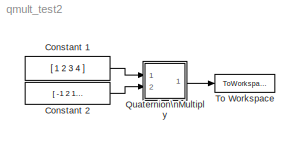
MODEL qmult_test2
KIND model
BLOCK [Constant] Constant 1
  Value = [ 1 2 3 4 ]
BLOCK [Constant] Constant 2
  Value = [  -1  2  1  -3 ]
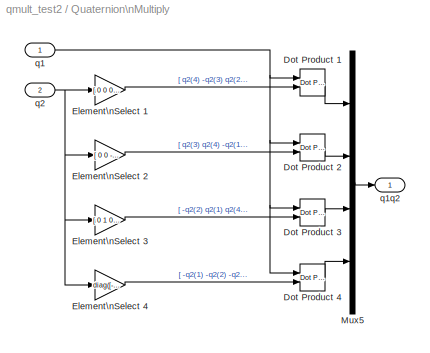
BLOCK [SubSystem] Quaternion\nMultiply
  FunctionWithSeparateData = off
  MaskDescription = q3 = (q1)(q2)
  MaskIconFrame = on
  MaskIconOpaque = on
  MaskIconRotate = none
  MaskIconUnits = pixels
  MaskType = Quaternion Multiply
  MinAlgLoopOccurrences = off
  Ports = [2, 1]
  RTWSystemCode = Auto
BLOCK [Reference] Quaternion\nMultiply/Dot Product 1  REF=simulink/Math\nOperations/Dot Product
  DoSatur = off
  InputSameDT = on
  LockScale = off
  OutDataType = sfix(16)
  OutDataTypeStr = Inherit: Inherit via internal rule
  OutScaling = 2^-10
  OutputDataTypeScalingMode = Inherit via internal rule
  Ports = [2, 1]
  RndMeth = Floor
  SourceBlock = simulink/Math\nOperations/Dot Product
  SourceType = Dot Product
BLOCK [Reference] Quaternion\nMultiply/Dot Product 2  REF=simulink/Math\nOperations/Dot Product
  DoSatur = off
  InputSameDT = on
  LockScale = off
  OutDataType = sfix(16)
  OutDataTypeStr = Inherit: Inherit via internal rule
  OutScaling = 2^-10
  OutputDataTypeScalingMode = Inherit via internal rule
  Ports = [2, 1]
  RndMeth = Floor
  SourceBlock = simulink/Math\nOperations/Dot Product
  SourceType = Dot Product
BLOCK [Reference] Quaternion\nMultiply/Dot Product 3  REF=simulink/Math\nOperations/Dot Product
  DoSatur = off
  InputSameDT = on
  LockScale = off
  OutDataType = sfix(16)
  OutDataTypeStr = Inherit: Inherit via internal rule
  OutScaling = 2^-10
  OutputDataTypeScalingMode = Inherit via internal rule
  Ports = [2, 1]
  RndMeth = Floor
  SourceBlock = simulink/Math\nOperations/Dot Product
  SourceType = Dot Product
BLOCK [Reference] Quaternion\nMultiply/Dot Product 4  REF=simulink/Math\nOperations/Dot Product
  DoSatur = off
  InputSameDT = on
  LockScale = off
  OutDataType = sfix(16)
  OutDataTypeStr = Inherit: Inherit via internal rule
  OutScaling = 2^-10
  OutputDataTypeScalingMode = Inherit via internal rule
  Ports = [2, 1]
  RndMeth = Floor
  SourceBlock = simulink/Math\nOperations/Dot Product
  SourceType = Dot Product
BLOCK [Gain] Quaternion\nMultiply/Element\nSelect 1
  Gain = [ 0 0 0 1; 0 0 1 0; 0 -1 0 0; 1 0 0 0]
  Multiplication = Matrix(K*u)
  OutDataType = sfix(16)
  OutScaling = 2^0
  ParameterDataType = sfix(16)
  ParameterScaling = 2^0
BLOCK [Gain] Quaternion\nMultiply/Element\nSelect 2
  Gain = [ 0 0 -1 0; 0 0 0 1; 1 0 0 0; 0 1 0 0 ]
  Multiplication = Matrix(K*u)
  OutDataType = sfix(16)
  OutScaling = 2^0
  ParameterDataType = sfix(16)
  ParameterScaling = 2^0
BLOCK [Gain] Quaternion\nMultiply/Element\nSelect 3
  Gain = [ 0 1 0 0; -1 0 0 0; 0 0 0 1; 0 0 1 0]
  Multiplication = Matrix(K*u)
  OutDataType = sfix(16)
  OutScaling = 2^0
  ParameterDataType = sfix(16)
  ParameterScaling = 2^0
BLOCK [Gain] Quaternion\nMultiply/Element\nSelect 4
  Gain = diag([-1,-1,-1,1])
  Multiplication = Matrix(K*u)
  OutDataType = sfix(16)
  OutScaling = 2^0
  ParameterDataType = sfix(16)
  ParameterScaling = 2^0
BLOCK [Mux] Quaternion\nMultiply/Mux5
  DisplayOption = bar
  Ports = [4, 1]
BLOCK [Inport] Quaternion\nMultiply/q1
  IconDisplay = Port number
  PortDimensions = 4
BLOCK [Outport] Quaternion\nMultiply/q1q2
  IconDisplay = Port number
  InitialOutput = 0
BLOCK [Inport] Quaternion\nMultiply/q2
  IconDisplay = Port number
  Port = 2
  PortDimensions = 4
BLOCK [ToWorkspace] To Workspace
  MaxDataPoints = 1
  SampleTime = -1
  SaveFormat = Array
  VariableName = simout
LINE Constant 1:1 -> Quaternion\nMultiply:1
LINE Constant 2:1 -> Quaternion\nMultiply:2
LINE Quaternion\nMultiply/Dot Product 1:1 -> Quaternion\nMultiply/Mux5:1
LINE Quaternion\nMultiply/Dot Product 2:1 -> Quaternion\nMultiply/Mux5:2
LINE Quaternion\nMultiply/Dot Product 3:1 -> Quaternion\nMultiply/Mux5:3
LINE Quaternion\nMultiply/Dot Product 4:1 -> Quaternion\nMultiply/Mux5:4
LINE Quaternion\nMultiply/Element\nSelect 1:1 -> Quaternion\nMultiply/Dot Product 1:2
LINE Quaternion\nMultiply/Element\nSelect 2:1 -> Quaternion\nMultiply/Dot Product 2:2
LINE Quaternion\nMultiply/Element\nSelect 3:1 -> Quaternion\nMultiply/Dot Product 3:2
LINE Quaternion\nMultiply/Element\nSelect 4:1 -> Quaternion\nMultiply/Dot Product 4:2
LINE Quaternion\nMultiply/Mux5:1 -> Quaternion\nMultiply/q1q2:1
NET Quaternion\nMultiply/q1:1 -> Quaternion\nMultiply/Dot Product 1:1, Quaternion\nMultiply/Dot Product 2:1, Quaternion\nMultiply/Dot Product 3:1, Quaternion\nMultiply/Dot Product 4:1
NET Quaternion\nMultiply/q2:1 -> Quaternion\nMultiply/Element\nSelect 1:1, Quaternion\nMultiply/Element\nSelect 2:1, Quaternion\nMultiply/Element\nSelect 3:1, Quaternion\nMultiply/Element\nSelect 4:1
LINE Quaternion\nMultiply:1 -> To Workspace:1
note: NET lines group one-source signal fan-out (src -> all destinations, sorted); 1:1 wires keep LINE
